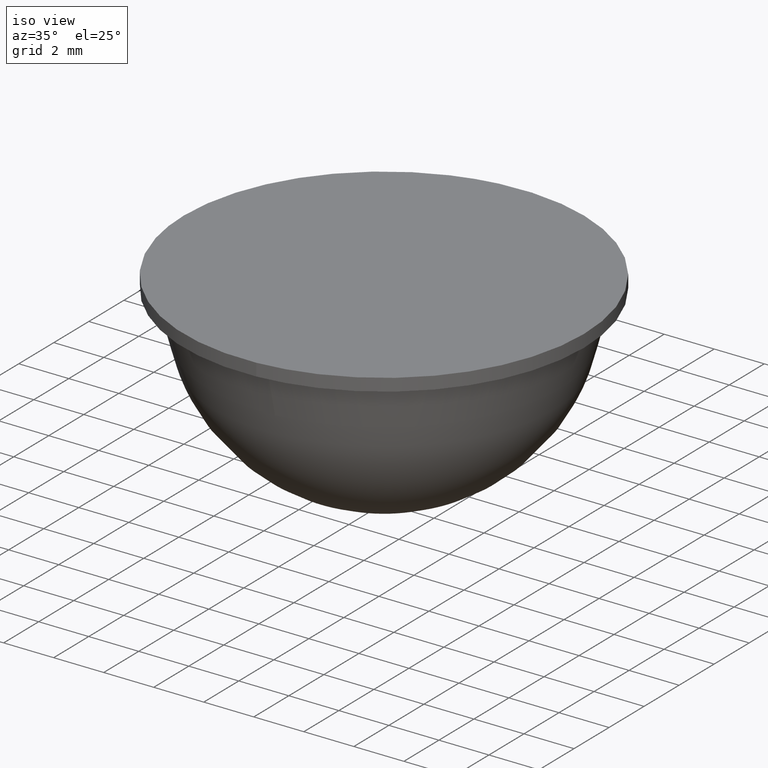
[diagram: clean part render]
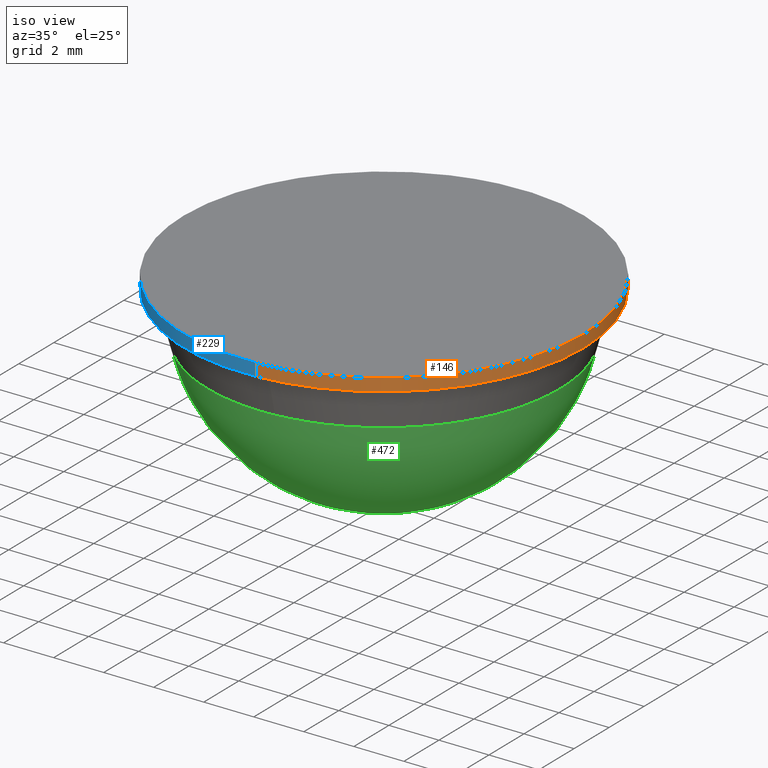
[diagram: same view with three faces highlighted in distinct colors, each labeled with its STEP entity id]
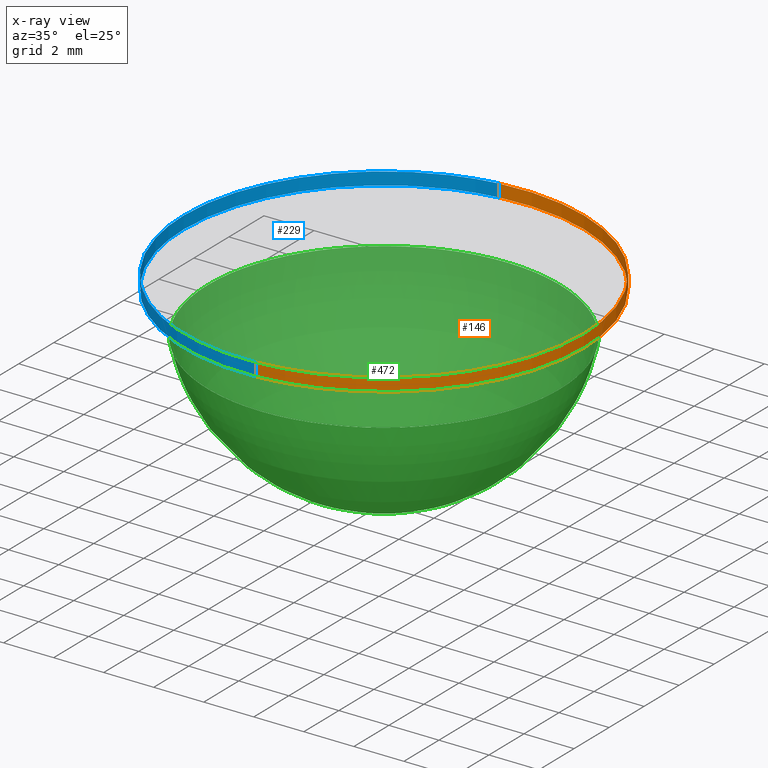
[diagram: x-ray of the same camera — body ghosted, the three highlighted faces saturated]
A machine part, iso view with three faces highlighted in distinct colors.
The next image is the same camera in x-ray (body ghosted, the three faces saturated) — at least one of them is partly hidden behind the body in this view.
Their STEP definitions:

[orange] entity #146 — the highlighted face is a freeform B-spline surface patch.
#44=CARTESIAN_POINT('',(-0.944273877254068,7.944076210909330,7.912500000000002));
#45=CARTESIAN_POINT('',(-0.716917829103821,7.971100923588844,7.912500000000001));
#46=CARTESIAN_POINT('',(-0.488388316278856,7.985078387374934,7.912500000000001));
#47=CARTESIAN_POINT('',(7.496690071096078,8.473466703653790,7.912500000000001));
#48=CARTESIAN_POINT('',(7.985078387374934,0.488388316278856,7.912500000000001));
#49=CARTESIAN_POINT('',(8.473466703653790,-7.496690071096078,7.912500000000001));
#50=CARTESIAN_POINT('',(0.488388316278856,-7.985078387374934,7.912500000000001));
#51=CARTESIAN_POINT('',(-0.944273877254068,7.944076210909330,7.387187500000001));
#52=CARTESIAN_POINT('',(-0.716917829103821,7.971100923588844,7.387187500000001));
#53=CARTESIAN_POINT('',(-0.488388316278856,7.985078387374934,7.387187500000000));
#54=CARTESIAN_POINT('',(7.496690071096078,8.473466703653790,7.387187500000000));
#55=CARTESIAN_POINT('',(7.985078387374934,0.488388316278856,7.387187500000000));
#56=CARTESIAN_POINT('',(8.473466703653790,-7.496690071096078,7.387187500000000));
#57=CARTESIAN_POINT('',(0.488388316278856,-7.985078387374934,7.387187500000000));
#65=(BOUNDED_SURFACE()B_SPLINE_SURFACE(2,1,((#44,#51),(#45,#52),(#46,#53),(#47,#54),(#48,#55),(#49,#56),(#50,#57)),.UNSPECIFIED.,.F.,.F.,.U.)B_SPLINE_SURFACE_WITH_KNOTS((3,2,2,3),(2,2),(0.0,0.530193359837562,13.785027355776601,27.039861351715629),(0.0,1.0),.UNSPECIFIED.)GEOMETRIC_REPRESENTATION_ITEM()RATIONAL_B_SPLINE_SURFACE(((0.977505800795127,0.977505800795127),(0.988284271247462,0.988284271247462),(1.0,1.0),(0.707106781186548,0.707106781186548),(1.0,1.0),(0.707106781186548,0.707106781186548),(1.0,1.0)))REPRESENTATION_ITEM('')SURFACE());
#66=CARTESIAN_POINT('',(-0.944268819982941,7.944076812039399,7.899999999999874));
#67=VERTEX_POINT('',#66);
#68=CARTESIAN_POINT('',(8.0,0.0,7.900000000000000));
#69=VERTEX_POINT('',#68);
#70=CARTESIAN_POINT('',(-0.944268819982941,7.944076812039400,7.899999999999874));
#71=CARTESIAN_POINT('',(-0.473790401847546,8.0,7.900000000000000));
#72=CARTESIAN_POINT('',(0.0,8.0,7.900000000000000));
#73=CARTESIAN_POINT('',(8.0,8.0,7.900000000000000));
#74=CARTESIAN_POINT('',(8.0,0.0,7.900000000000000));
#82=(BOUNDED_CURVE()B_SPLINE_CURVE(2,(#70,#71,#72,#73,#74),.UNSPECIFIED.,.F.,.U.)B_SPLINE_CURVE_WITH_KNOTS((3,2,3),(0.229562581104653,0.250000000000000,0.500000000000000),.UNSPECIFIED.)CURVE()GEOMETRIC_REPRESENTATION_ITEM()RATIONAL_B_SPLINE_CURVE((0.956026965066855,0.976056074382012,1.0,0.707106781186548,1.0))REPRESENTATION_ITEM(''));
#83=EDGE_CURVE('',#67,#69,#82,.T.);
#84=ORIENTED_EDGE('',*,*,#83,.T.);
#85=CARTESIAN_POINT('',(0.488385459671300,-7.985078562091512,7.899999999999918));
#86=VERTEX_POINT('',#85);
#87=CARTESIAN_POINT('',(8.0,0.0,7.900000000000000));
#88=CARTESIAN_POINT('',(8.0,-7.525651232526574,7.900000000000001));
#89=CARTESIAN_POINT('',(0.488385459671300,-7.985078562091512,7.899999999999918));
#97=(BOUNDED_CURVE()B_SPLINE_CURVE(2,(#87,#88,#89),.UNSPECIFIED.,.F.,.U.)B_SPLINE_CURVE_WITH_KNOTS((3,3),(0.500000000000000,0.739333023969413),.UNSPECIFIED.)CURVE()GEOMETRIC_REPRESENTATION_ITEM()RATIONAL_B_SPLINE_CURVE((1.0,0.719603920964966,0.976072173966902))REPRESENTATION_ITEM(''));
#98=EDGE_CURVE('',#69,#86,#97,.T.);
#99=ORIENTED_EDGE('',*,*,#98,.T.);
#100=CARTESIAN_POINT('',(0.488385494062622,-7.985078559988073,7.400000000000000));
#101=VERTEX_POINT('',#100);
#102=CARTESIAN_POINT('',(0.488385459671300,-7.985078562091512,7.899999999999918));
#103=CARTESIAN_POINT('',(0.488385494062622,-7.985078559988073,7.400000000000000));
#104=QUASI_UNIFORM_CURVE('',1,(#102,#103),.UNSPECIFIED.,.F.,.U.);
#105=EDGE_CURVE('',#86,#101,#104,.T.);
#106=ORIENTED_EDGE('',*,*,#105,.T.);
#107=CARTESIAN_POINT('',(8.0,0.0,7.400000000000000));
#108=VERTEX_POINT('',#107);
#109=CARTESIAN_POINT('',(8.0,0.0,7.400000000000000));
#110=CARTESIAN_POINT('',(8.0,-7.525651200053410,7.400000000000000));
#111=CARTESIAN_POINT('',(0.488385494062622,-7.985078559988073,7.400000000000000));
#119=(BOUNDED_CURVE()B_SPLINE_CURVE(2,(#109,#110,#111),.UNSPECIFIED.,.F.,.U.)B_SPLINE_CURVE_WITH_KNOTS((3,3),(0.500000000000000,0.739333023226263),.UNSPECIFIED.)CURVE()GEOMETRIC_REPRESENTATION_ITEM()RATIONAL_B_SPLINE_CURVE((1.0,0.719603921835620,0.976072172374189))REPRESENTATION_ITEM(''));
#120=EDGE_CURVE('',#108,#101,#119,.T.);
#121=ORIENTED_EDGE('',*,*,#120,.F.);
#122=CARTESIAN_POINT('',(-0.944268880895772,7.944076804799064,7.400000000000000));
#123=VERTEX_POINT('',#122);
#124=CARTESIAN_POINT('',(-0.944268880895772,7.944076804799064,7.400000000000000));
#125=CARTESIAN_POINT('',(-0.473790432625938,8.0,7.400000000000000));
#126=CARTESIAN_POINT('',(0.0,8.0,7.400000000000000));
#127=CARTESIAN_POINT('',(8.0,8.0,7.400000000000000));
#128=CARTESIAN_POINT('',(8.0,0.0,7.400000000000000));
#136=(BOUNDED_CURVE()B_SPLINE_CURVE(2,(#124,#125,#126,#127,#128),.UNSPECIFIED.,.F.,.U.)B_SPLINE_CURVE_WITH_KNOTS((3,2,3),(0.229562579808786,0.250000000000000,0.500000000000000),.UNSPECIFIED.)CURVE()GEOMETRIC_REPRESENTATION_ITEM()RATIONAL_B_SPLINE_CURVE((0.956026962526900,0.976056072863809,1.0,0.707106781186548,1.0))REPRESENTATION_ITEM(''));
#137=EDGE_CURVE('',#123,#108,#136,.T.);
#138=ORIENTED_EDGE('',*,*,#137,.F.);
#139=CARTESIAN_POINT('',(-0.944268819982941,7.944076812039399,7.899999999999874));
#140=CARTESIAN_POINT('',(-0.944268880895772,7.944076804799064,7.400000000000000));
#141=QUASI_UNIFORM_CURVE('',1,(#139,#140),.UNSPECIFIED.,.F.,.U.);
#142=EDGE_CURVE('',#67,#123,#141,.T.);
#143=ORIENTED_EDGE('',*,*,#142,.F.);
#144=EDGE_LOOP('',(#84,#99,#106,#121,#138,#143));
#145=FACE_OUTER_BOUND('',#144,.T.);
#146=ADVANCED_FACE('',(#145),#65,.T.);

[blue] entity #229 — the highlighted face is a freeform B-spline surface patch.
#66=CARTESIAN_POINT('',(-0.944268819982941,7.944076812039399,7.899999999999874));
#67=VERTEX_POINT('',#66);
#85=CARTESIAN_POINT('',(0.488385459671300,-7.985078562091512,7.899999999999918));
#86=VERTEX_POINT('',#85);
#100=CARTESIAN_POINT('',(0.488385494062622,-7.985078559988073,7.400000000000000));
#101=VERTEX_POINT('',#100);
#102=CARTESIAN_POINT('',(0.488385459671300,-7.985078562091512,7.899999999999918));
#103=CARTESIAN_POINT('',(0.488385494062622,-7.985078559988073,7.400000000000000));
#104=QUASI_UNIFORM_CURVE('',1,(#102,#103),.UNSPECIFIED.,.F.,.U.);
#105=EDGE_CURVE('',#86,#101,#104,.T.);
#122=CARTESIAN_POINT('',(-0.944268880895772,7.944076804799064,7.400000000000000));
#123=VERTEX_POINT('',#122);
#139=CARTESIAN_POINT('',(-0.944268819982941,7.944076812039399,7.899999999999874));
#140=CARTESIAN_POINT('',(-0.944268880895772,7.944076804799064,7.400000000000000));
#141=QUASI_UNIFORM_CURVE('',1,(#139,#140),.UNSPECIFIED.,.F.,.U.);
#142=EDGE_CURVE('',#67,#123,#141,.T.);
#147=CARTESIAN_POINT('',(0.488388316278856,-7.985078387374934,7.912500000000001));
#148=CARTESIAN_POINT('',(-7.496690071096078,-8.473466703653790,7.912500000000001));
#149=CARTESIAN_POINT('',(-7.985078387374934,-0.488388316278856,7.912500000000001));
#150=CARTESIAN_POINT('',(-8.446289573860220,7.052347926716008,7.912500000000001));
#151=CARTESIAN_POINT('',(-0.944273877254068,7.944076210909330,7.912500000000002));
#152=CARTESIAN_POINT('',(0.488388316278856,-7.985078387374934,7.387187500000000));
#153=CARTESIAN_POINT('',(-7.496690071096078,-8.473466703653790,7.387187500000000));
#154=CARTESIAN_POINT('',(-7.985078387374934,-0.488388316278856,7.387187500000000));
#155=CARTESIAN_POINT('',(-8.446289573860220,7.052347926716008,7.387187499999999));
#156=CARTESIAN_POINT('',(-0.944273877254068,7.944076210909330,7.387187500000001));
#164=(BOUNDED_SURFACE()B_SPLINE_SURFACE(2,1,((#147,#152),(#148,#153),(#149,#154),(#150,#155),(#151,#156)),.UNSPECIFIED.,.F.,.F.,.U.)B_SPLINE_SURFACE_WITH_KNOTS((3,2,3),(2,2),(0.0,13.254833995939039,25.979474632040510),(0.0,1.0),.UNSPECIFIED.)GEOMETRIC_REPRESENTATION_ITEM()RATIONAL_B_SPLINE_SURFACE(((1.0,1.0),(0.707106781186548,0.707106781186548),(1.0,1.0),(0.718822509939086,0.718822509939086),(0.977505800795127,0.977505800795127)))REPRESENTATION_ITEM('')SURFACE());
#165=CARTESIAN_POINT('',(-8.0,0.0,7.900000000000000));
#166=VERTEX_POINT('',#165);
#167=CARTESIAN_POINT('',(-8.0,0.0,7.900000000000000));
#168=CARTESIAN_POINT('',(-8.000000000000002,7.105400762814723,7.900000000000000));
#169=CARTESIAN_POINT('',(-0.944268819982941,7.944076812039400,7.899999999999874));
#177=(BOUNDED_CURVE()B_SPLINE_CURVE(2,(#167,#168,#169),.UNSPECIFIED.,.F.,.U.)B_SPLINE_CURVE_WITH_KNOTS((3,3),(0.0,0.229562581104653),.UNSPECIFIED.)CURVE()GEOMETRIC_REPRESENTATION_ITEM()RATIONAL_B_SPLINE_CURVE((1.0,0.731050706804535,0.956026965066855))REPRESENTATION_ITEM(''));
#178=EDGE_CURVE('',#166,#67,#177,.T.);
#179=ORIENTED_EDGE('',*,*,#178,.T.);
#180=ORIENTED_EDGE('',*,*,#142,.T.);
#181=CARTESIAN_POINT('',(-8.0,0.0,7.400000000000000));
#182=VERTEX_POINT('',#181);
#183=CARTESIAN_POINT('',(-8.0,0.0,7.400000000000000));
#184=CARTESIAN_POINT('',(-8.0,7.105400707949082,7.400000000000000));
#185=CARTESIAN_POINT('',(-0.944268880895772,7.944076804799064,7.400000000000000));
#193=(BOUNDED_CURVE()B_SPLINE_CURVE(2,(#183,#184,#185),.UNSPECIFIED.,.F.,.U.)B_SPLINE_CURVE_WITH_KNOTS((3,3),(0.0,0.229562579808786),.UNSPECIFIED.)CURVE()GEOMETRIC_REPRESENTATION_ITEM()RATIONAL_B_SPLINE_CURVE((1.0,0.731050708322738,0.956026962526900))REPRESENTATION_ITEM(''));
#194=EDGE_CURVE('',#182,#123,#193,.T.);
#195=ORIENTED_EDGE('',*,*,#194,.F.);
#196=CARTESIAN_POINT('',(0.488385494062622,-7.985078559988073,7.400000000000000));
#197=CARTESIAN_POINT('',(0.244420691324024,-8.0,7.400000000000000));
#198=CARTESIAN_POINT('',(0.0,-8.0,7.400000000000000));
#199=CARTESIAN_POINT('',(-8.0,-8.0,7.400000000000000));
#200=CARTESIAN_POINT('',(-8.0,0.0,7.400000000000000));
#208=(BOUNDED_CURVE()B_SPLINE_CURVE(2,(#196,#197,#198,#199,#200),.UNSPECIFIED.,.F.,.U.)B_SPLINE_CURVE_WITH_KNOTS((3,2,3),(0.739333023226263,0.750000000000000,1.0),.UNSPECIFIED.)CURVE()GEOMETRIC_REPRESENTATION_ITEM()RATIONAL_B_SPLINE_CURVE((0.976072172374189,0.987502859350927,1.0,0.707106781186548,1.0))REPRESENTATION_ITEM(''));
#209=EDGE_CURVE('',#101,#182,#208,.T.);
#210=ORIENTED_EDGE('',*,*,#209,.F.);
#211=ORIENTED_EDGE('',*,*,#105,.F.);
#212=CARTESIAN_POINT('',(0.488385459671300,-7.985078562091512,7.899999999999918));
#213=CARTESIAN_POINT('',(0.244420674080147,-8.000000000000002,7.900000000000000));
#214=CARTESIAN_POINT('',(0.0,-8.0,7.900000000000000));
#215=CARTESIAN_POINT('',(-8.0,-8.0,7.900000000000000));
#216=CARTESIAN_POINT('',(-8.0,0.0,7.900000000000000));
#224=(BOUNDED_CURVE()B_SPLINE_CURVE(2,(#212,#213,#214,#215,#216),.UNSPECIFIED.,.F.,.U.)B_SPLINE_CURVE_WITH_KNOTS((3,2,3),(0.739333023969413,0.750000000000000,1.0),.UNSPECIFIED.)CURVE()GEOMETRIC_REPRESENTATION_ITEM()RATIONAL_B_SPLINE_CURVE((0.976072173966902,0.987502860221582,1.0,0.707106781186548,1.0))REPRESENTATION_ITEM(''));
#225=EDGE_CURVE('',#86,#166,#224,.T.);
#226=ORIENTED_EDGE('',*,*,#225,.T.);
#227=EDGE_LOOP('',(#179,#180,#195,#210,#211,#226));
#228=FACE_OUTER_BOUND('',#227,.T.);
#229=ADVANCED_FACE('',(#228),#164,.T.);

[green] entity #472 — the highlighted face is a freeform B-spline surface patch.
#265=CARTESIAN_POINT('',(-0.551693312700505,7.009928182672359,5.651923334424920));
#266=VERTEX_POINT('',#265);
#272=CARTESIAN_POINT('',(-7.031604271963740,0.0,5.651923334423870));
#273=VERTEX_POINT('',#272);
#274=CARTESIAN_POINT('',(-7.031604271963740,0.0,5.651923334423870));
#275=CARTESIAN_POINT('',(-7.031604271963740,6.499948130095059,5.651923334423870));
#276=CARTESIAN_POINT('',(-0.551693312700505,7.009928182672359,5.651923334424920));
#284=(BOUNDED_CURVE()B_SPLINE_CURVE(2,(#274,#275,#276),.UNSPECIFIED.,.F.,.U.)B_SPLINE_CURVE_WITH_KNOTS((3,3),(0.0,0.236331300632466),.UNSPECIFIED.)CURVE()GEOMETRIC_REPRESENTATION_ITEM()RATIONAL_B_SPLINE_CURVE((1.0,0.723120658605550,0.969723356171187))REPRESENTATION_ITEM(''));
#285=EDGE_CURVE('',#273,#266,#284,.T.);
#287=CARTESIAN_POINT('',(0.551693312700505,-7.009928182672359,5.651923334424920));
#288=VERTEX_POINT('',#287);
#289=CARTESIAN_POINT('',(0.551693312700505,-7.009928182672359,5.651923334424920));
#290=CARTESIAN_POINT('',(0.276272484287225,-7.031604271963740,5.651923334423869));
#291=CARTESIAN_POINT('',(0.0,-7.031604271963740,5.651923334423870));
#292=CARTESIAN_POINT('',(-7.031604271963740,-7.031604271963740,5.651923334423871));
#293=CARTESIAN_POINT('',(-7.031604271963740,0.0,5.651923334423870));
#301=(BOUNDED_CURVE()B_SPLINE_CURVE(2,(#289,#290,#291,#292,#293),.UNSPECIFIED.,.F.,.U.)B_SPLINE_CURVE_WITH_KNOTS((3,2,3),(0.736331300632466,0.750000000000000,1.0),.UNSPECIFIED.)CURVE()GEOMETRIC_REPRESENTATION_ITEM()RATIONAL_B_SPLINE_CURVE((0.969723356171187,0.983986122580998,1.0,0.707106781186548,1.0))REPRESENTATION_ITEM(''));
#302=EDGE_CURVE('',#288,#273,#301,.T.);
#378=CARTESIAN_POINT('',(7.031604271963740,0.0,5.651923334423870));
#379=VERTEX_POINT('',#378);
#380=CARTESIAN_POINT('',(7.031604271963740,0.0,5.651923334423870));
#381=CARTESIAN_POINT('',(7.031604271963740,-6.499948130095079,5.651923334423869));
#382=CARTESIAN_POINT('',(0.551693312700505,-7.009928182672359,5.651923334424920));
#390=(BOUNDED_CURVE()B_SPLINE_CURVE(2,(#380,#381,#382),.UNSPECIFIED.,.F.,.U.)B_SPLINE_CURVE_WITH_KNOTS((3,3),(0.500000000000000,0.736331300632466),.UNSPECIFIED.)CURVE()GEOMETRIC_REPRESENTATION_ITEM()RATIONAL_B_SPLINE_CURVE((1.0,0.723120658605549,0.969723356171188))REPRESENTATION_ITEM(''));
#391=EDGE_CURVE('',#379,#288,#390,.T.);
#393=CARTESIAN_POINT('',(-0.551693312700505,7.009928182672359,5.651923334424920));
#394=CARTESIAN_POINT('',(-0.276272484287225,7.031604271963740,5.651923334423869));
#395=CARTESIAN_POINT('',(0.0,7.031604271963740,5.651923334423870));
#396=CARTESIAN_POINT('',(7.031604271963740,7.031604271963740,5.651923334423871));
#397=CARTESIAN_POINT('',(7.031604271963740,0.0,5.651923334423870));
#405=(BOUNDED_CURVE()B_SPLINE_CURVE(2,(#393,#394,#395,#396,#397),.UNSPECIFIED.,.F.,.U.)B_SPLINE_CURVE_WITH_KNOTS((3,2,3),(0.236331300632466,0.250000000000000,0.500000000000000),.UNSPECIFIED.)CURVE()GEOMETRIC_REPRESENTATION_ITEM()RATIONAL_B_SPLINE_CURVE((0.969723356171187,0.983986122580998,1.0,0.707106781186548,1.0))REPRESENTATION_ITEM(''));
#406=EDGE_CURVE('',#266,#379,#405,.T.);
#442=CARTESIAN_POINT('',(-5.002404075788780,5.002404082666148,8.538621251981619));
#443=CARTESIAN_POINT('',(-3.555267374097193,7.110534736524991,6.068498467066350));
#444=CARTESIAN_POINT('',(3.555267362384916,7.110534736524991,6.068498430265448));
#445=CARTESIAN_POINT('',(5.002404089644970,5.002404082666148,8.538621200201275));
#446=CARTESIAN_POINT('',(-7.110534742338250,3.555267368283934,6.068498485332074));
#447=CARTESIAN_POINT('',(-6.144852773061306,6.144852736070222,0.000000032035837));
#448=CARTESIAN_POINT('',(6.144852698533439,6.144852736070222,-0.000000031570101));
#449=CARTESIAN_POINT('',(7.110534730625970,3.555267368283934,6.068498411730270));
#450=CARTESIAN_POINT('',(-7.110534742338250,-3.555267368198176,6.068498485062613));
#451=CARTESIAN_POINT('',(-6.144852773061306,-6.144852735524523,0.000000031570108));
#452=CARTESIAN_POINT('',(6.144852698533439,-6.144852735524523,-0.000000032035830));
#453=CARTESIAN_POINT('',(7.110534730625970,-3.555267368198176,6.068498411460809));
#454=CARTESIAN_POINT('',(-5.002404075788780,-5.002404082767603,8.538621251602482));
#455=CARTESIAN_POINT('',(-3.555267374097193,-7.110534736439228,6.068498466527435));
#456=CARTESIAN_POINT('',(3.555267362384916,-7.110534736439228,6.068498429726533));
#457=CARTESIAN_POINT('',(5.002404089644970,-5.002404082767603,8.538621199822135));
#465=(BOUNDED_SURFACE()B_SPLINE_SURFACE(2,2,((#442,#446,#450,#454),(#443,#447,#451,#455),(#444,#448,#452,#456),(#445,#449,#453,#457)),.UNSPECIFIED.,.F.,.F.,.U.)B_SPLINE_SURFACE_WITH_KNOTS((3,1,3),(3,1,3),(0.0,9.008793367468444,18.017586734936891),(0.0,9.008793367468446,18.017586734936891),.UNSPECIFIED.)GEOMETRIC_REPRESENTATION_ITEM()RATIONAL_B_SPLINE_SURFACE(((2.456759843543074,1.728379921771537,1.728379921771537,2.456759843543074),(1.728379921771537,1.0,1.0,1.728379921771537),(1.728379921771537,1.0,1.0,1.728379921771537),(2.456759843543074,1.728379921771537,1.728379921771537,2.456759843543074)))REPRESENTATION_ITEM('')SURFACE());
#466=ORIENTED_EDGE('',*,*,#285,.T.);
#467=ORIENTED_EDGE('',*,*,#406,.T.);
#468=ORIENTED_EDGE('',*,*,#391,.T.);
#469=ORIENTED_EDGE('',*,*,#302,.T.);
#470=EDGE_LOOP('',(#466,#467,#468,#469));
#471=FACE_OUTER_BOUND('',#470,.T.);
#472=ADVANCED_FACE('',(#471),#465,.T.);